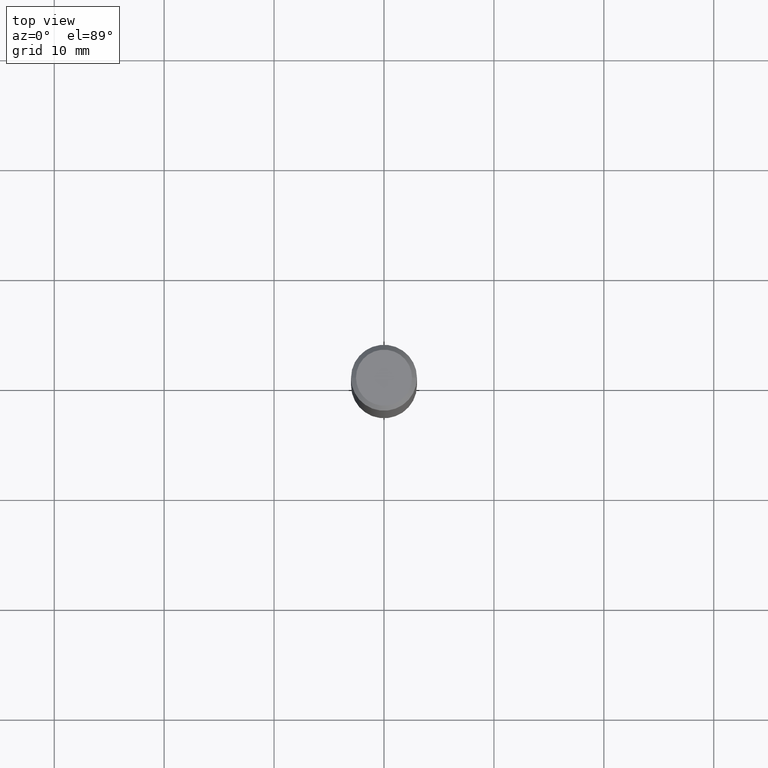
[diagram: clean part render]
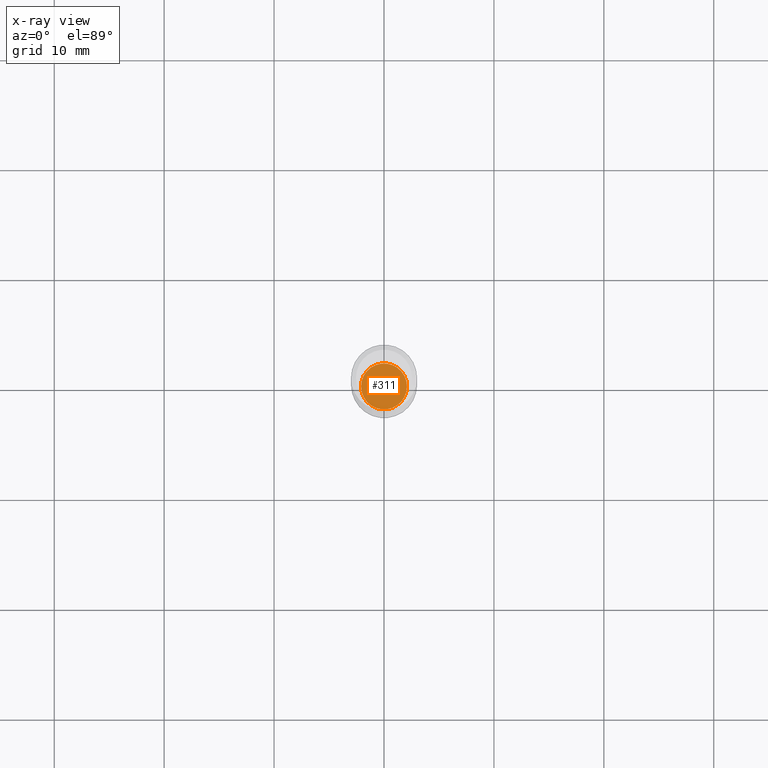
[diagram: x-ray — body ghosted, one internal face saturated and labeled with its STEP entity id]
A machine part, top view, then the same camera in x-ray: the body is ghosted and one INTERNAL B-rep face — a face not visible from any outside direction — is saturated and labeled: STEP entity #311.
In plain terms, the highlighted planar face has unit normal (-0, 0, 1).
Its self-contained STEP definition (entity closure, byte-faithful):
#17 = VERTEX_POINT ( 'NONE', #471 ) ;
#52 = PLANE ( 'NONE',  #343 ) ;
#76 = DIRECTION ( 'NONE',  ( 1.000000000000000000, -6.982962677686266711E-15, 0.000000000000000000 ) ) ;
#104 = CARTESIAN_POINT ( 'NONE',  ( 0.08219999999999999529, -6.924654939327608213E-15, -1.818899999999999739 ) ) ;
#131 = CARTESIAN_POINT ( 'NONE',  ( 4.448063211570144353E-29, -6.350655407221796540E-15, -1.818899999999999739 ) ) ;
#142 = VERTEX_POINT ( 'NONE', #104 ) ;
#172 = CARTESIAN_POINT ( 'NONE',  ( 4.448063211570144353E-29, -6.350655407221796540E-15, -1.818899999999999739 ) ) ;
#174 = ORIENTED_EDGE ( 'NONE', *, *, #297, .F. ) ;
#215 = CIRCLE ( 'NONE', #327, 0.08219999999999999529 ) ;
#231 = DIRECTION ( 'NONE',  ( -2.445468806185136597E-29, 3.491481338843145583E-15, 1.000000000000000000 ) ) ;
#246 = EDGE_CURVE ( 'NONE', #142, #17, #296, .T. ) ;
#283 = DIRECTION ( 'NONE',  ( 1.000000000000000000, -6.982962677686266711E-15, 0.000000000000000000 ) ) ;
#296 = CIRCLE ( 'NONE', #488, 0.08219999999999999529 ) ;
#297 = EDGE_CURVE ( 'NONE', #17, #142, #215, .T. ) ;
#300 = DIRECTION ( 'NONE',  ( 1.000000000000000000, -6.982962677686265922E-15, 4.876176775795935793E-29 ) ) ;
#311 = ADVANCED_FACE ( 'NONE', ( #392 ), #52, .F. ) ;
#327 = AXIS2_PLACEMENT_3D ( 'NONE', #131, #385, #283 ) ;
#343 = AXIS2_PLACEMENT_3D ( 'NONE', #172, #344, #300 ) ;
#344 = DIRECTION ( 'NONE',  ( -2.438088387897960049E-29, 3.491481338843145188E-15, 1.000000000000000000 ) ) ;
#355 = ORIENTED_EDGE ( 'NONE', *, *, #246, .F. ) ;
#385 = DIRECTION ( 'NONE',  ( -2.445468806185136597E-29, 3.491481338843145583E-15, 1.000000000000000000 ) ) ;
#392 = FACE_OUTER_BOUND ( 'NONE', #468, .T. ) ;
#418 = CARTESIAN_POINT ( 'NONE',  ( 4.448063211570144353E-29, -6.350655407221796540E-15, -1.818899999999999739 ) ) ;
#468 = EDGE_LOOP ( 'NONE', ( #355, #174 ) ) ;
#471 = CARTESIAN_POINT ( 'NONE',  ( -0.08219999999999999529, -5.763940051252883414E-15, -1.818899999999999739 ) ) ;
#488 = AXIS2_PLACEMENT_3D ( 'NONE', #418, #231, #76 ) ;